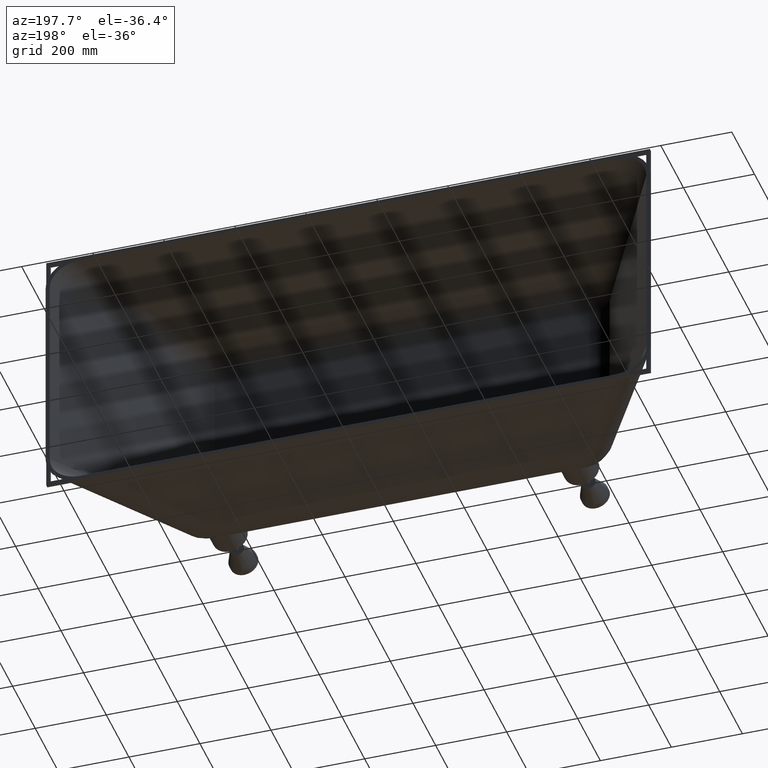
[diagram: clean part render]
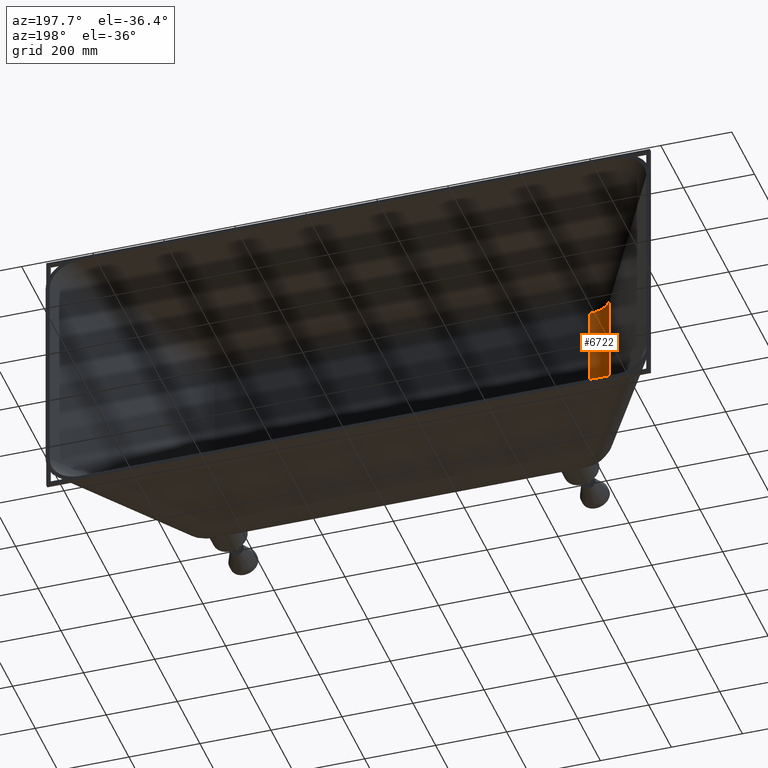
[diagram: same view with one face highlighted and labeled with its STEP entity id]
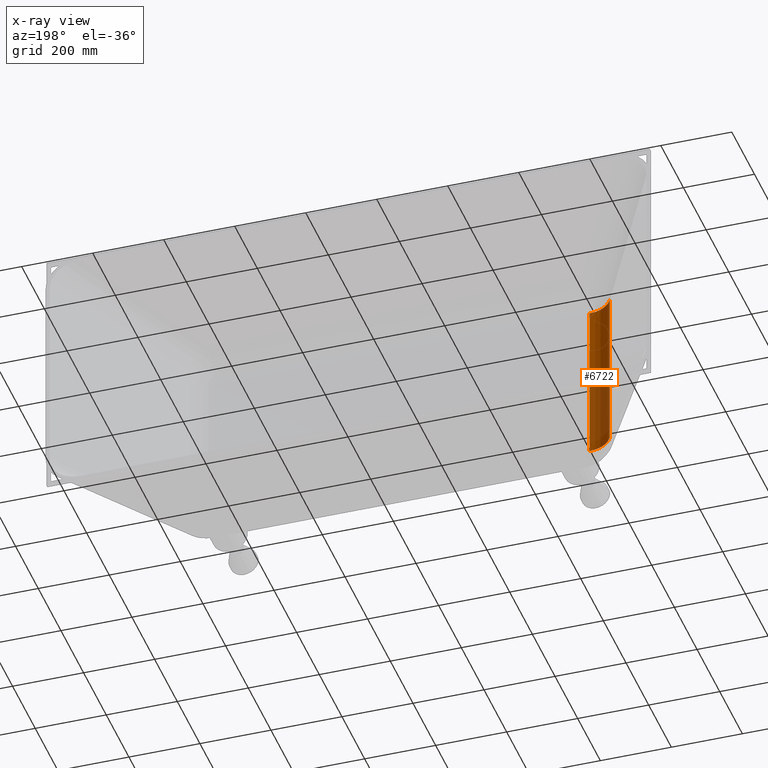
[diagram: x-ray of the same camera — body ghosted, the highlighted face saturated]
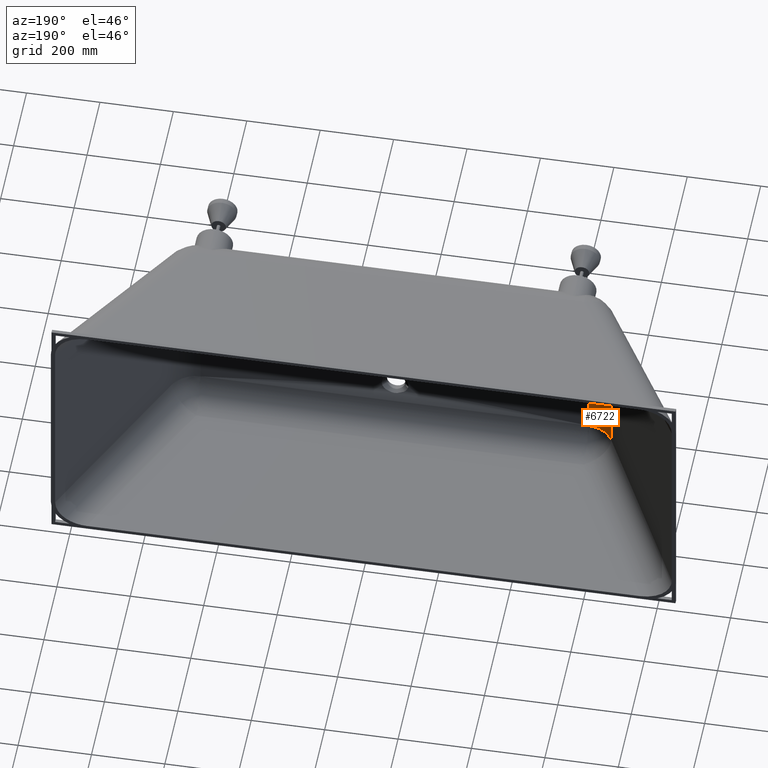
[diagram: same view with one face highlighted and labeled with its STEP entity id]
A machine part, auxiliary view. The second image highlights one B-rep face of the part: STEP entity #6722.
The next image is the same camera in x-ray: the body ghosted, the highlighted face saturated — about 44% of this face is hidden behind the body in this view.
A second angle (auxiliary view) of the same face is appended — the face is thin or edge-on in the first view.
In plain terms, the highlighted cylindrical surface (edge-blend (fillet) strip) has radius 80 mm, axis along (0, 0, -1).
Its self-contained STEP definition (entity closure, byte-faithful):
#76 = CARTESIAN_POINT ( 'NONE',  ( -597.8469478457449200, -436.7892789801280700, -229.4140630938799500 ) ) ;
#87 = FACE_OUTER_BOUND ( 'NONE', #4702, .T. ) ;
#210 = LINE ( 'NONE', #9334, #6925 ) ;
#459 = EDGE_CURVE ( 'NONE', #5821, #3782, #4897, .T. ) ;
#1210 = VERTEX_POINT ( 'NONE', #76 ) ;
#1398 = EDGE_CURVE ( 'NONE', #7539, #1210, #9450, .T. ) ;
#1491 = ORIENTED_EDGE ( 'NONE', *, *, #8850, .T. ) ;
#2153 = CYLINDRICAL_SURFACE ( 'NONE', #3378, 79.99999999999995700 ) ;
#2198 = CARTESIAN_POINT ( 'NONE',  ( -527.8798710438532000, -478.0000000000000000, 229.4140630938800900 ) ) ;
#2514 = DIRECTION ( 'NONE',  ( 0.0000000000000000000, 0.0000000000000000000, 1.000000000000000000 ) ) ;
#2536 = CARTESIAN_POINT ( 'NONE',  ( -597.8469478457449200, -436.7892789801281300, 300.0000000000000000 ) ) ;
#2708 = AXIS2_PLACEMENT_3D ( 'NONE', #5193, #5204, #6440 ) ;
#3378 = AXIS2_PLACEMENT_3D ( 'NONE', #4987, #10774, #8176 ) ;
#3482 = ORIENTED_EDGE ( 'NONE', *, *, #1398, .T. ) ;
#3782 = VERTEX_POINT ( 'NONE', #4165 ) ;
#4015 = EDGE_CURVE ( 'NONE', #1210, #3782, #6745, .T. ) ;
#4165 = CARTESIAN_POINT ( 'NONE',  ( -597.8469478457449200, -436.7892789801281300, 229.4140630938800900 ) ) ;
#4401 = ORIENTED_EDGE ( 'NONE', *, *, #4015, .T. ) ;
#4538 = VECTOR ( 'NONE', #2514, 1000.000000000000000 ) ;
#4702 = EDGE_LOOP ( 'NONE', ( #9087, #1491, #3482, #4401 ) ) ;
#4897 = CIRCLE ( 'NONE', #2708, 80.00000000000001400 ) ;
#4987 = CARTESIAN_POINT ( 'NONE',  ( -527.8798710438532000, -397.9999999999999400, 360.0000000000001700 ) ) ;
#5193 = CARTESIAN_POINT ( 'NONE',  ( -527.8798710438533100, -397.9999999999999400, 229.4140630938800900 ) ) ;
#5204 = DIRECTION ( 'NONE',  ( -0.0000000000000000000, -0.0000000000000000000, -1.000000000000000000 ) ) ;
#5821 = VERTEX_POINT ( 'NONE', #2198 ) ;
#6440 = DIRECTION ( 'NONE',  ( 1.000000000000000000, 6.938893903907227400E-016, 0.0000000000000000000 ) ) ;
#6722 = ADVANCED_FACE ( 'NONE', ( #87 ), #2153, .F. ) ;
#6745 = LINE ( 'NONE', #2536, #4538 ) ;
#6832 = CARTESIAN_POINT ( 'NONE',  ( -527.8798710438532000, -397.9999999999999400, -229.4140630938799700 ) ) ;
#6925 = VECTOR ( 'NONE', #9257, 1000.000000000000000 ) ;
#7539 = VERTEX_POINT ( 'NONE', #10537 ) ;
#7553 = DIRECTION ( 'NONE',  ( -1.000000000000000000, 0.0000000000000000000, 3.469446951953616200E-016 ) ) ;
#7653 = DIRECTION ( 'NONE',  ( -3.966948011022023400E-016, -0.0000000000000000000, -1.000000000000000000 ) ) ;
#8176 = DIRECTION ( 'NONE',  ( -1.000000000000000000, 0.0000000000000000000, 0.0000000000000000000 ) ) ;
#8850 = EDGE_CURVE ( 'NONE', #5821, #7539, #210, .T. ) ;
#9087 = ORIENTED_EDGE ( 'NONE', *, *, #459, .F. ) ;
#9257 = DIRECTION ( 'NONE',  ( 0.0000000000000000000, -0.0000000000000000000, -1.000000000000000000 ) ) ;
#9317 = AXIS2_PLACEMENT_3D ( 'NONE', #6832, #7653, #7553 ) ;
#9334 = CARTESIAN_POINT ( 'NONE',  ( -527.8798710438532000, -478.0000000000000000, -300.0000000000000000 ) ) ;
#9450 = CIRCLE ( 'NONE', #9317, 79.99999999999995700 ) ;
#10537 = CARTESIAN_POINT ( 'NONE',  ( -527.8798710438532000, -478.0000000000000000, -229.4140630938799700 ) ) ;
#10774 = DIRECTION ( 'NONE',  ( 0.0000000000000000000, 0.0000000000000000000, -1.000000000000000000 ) ) ;